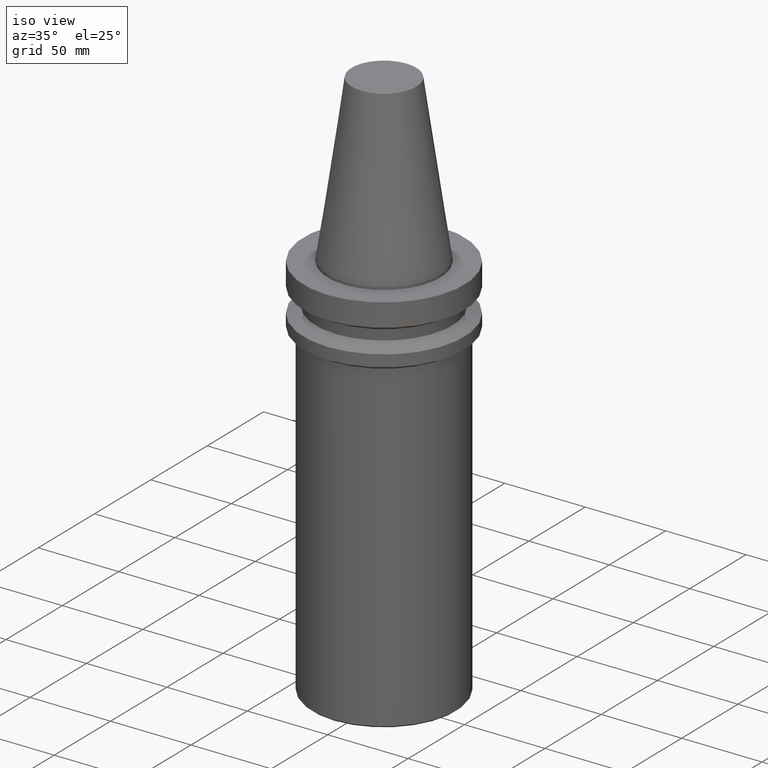
[diagram: clean part render]
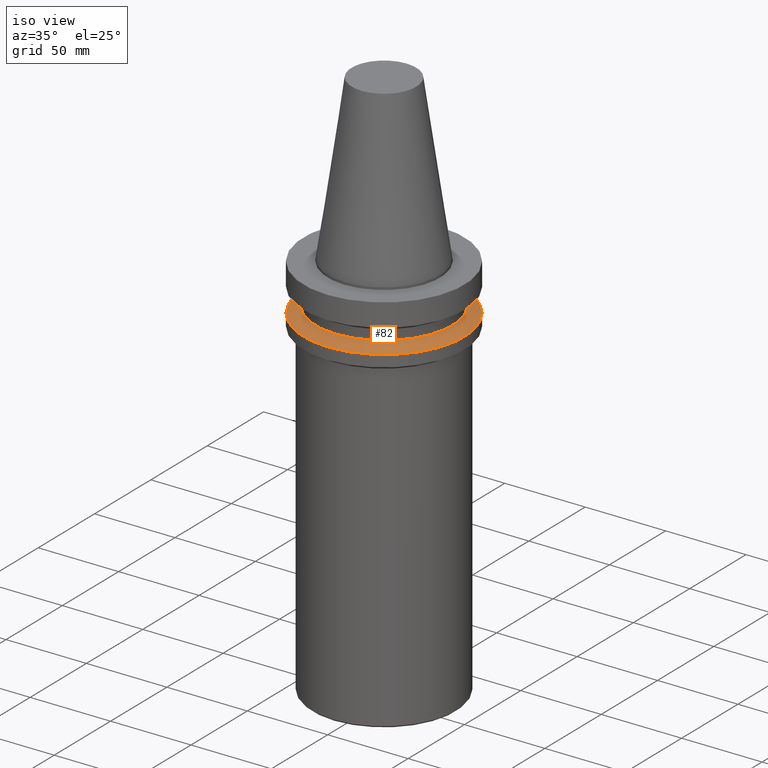
[diagram: same view with one face highlighted and labeled with its STEP entity id]
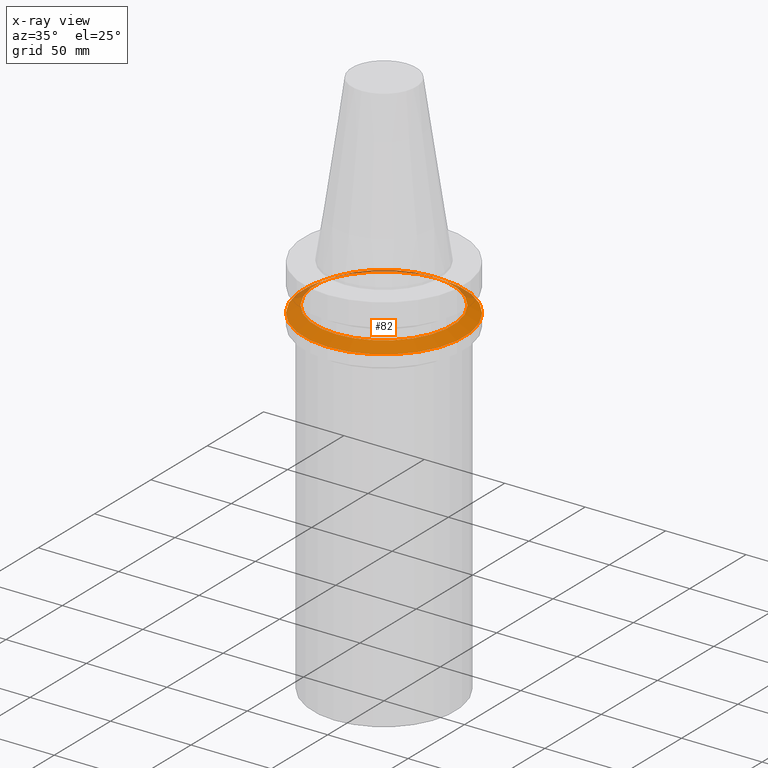
[diagram: x-ray of the same camera — body ghosted, the highlighted face saturated]
A machine part, iso view. The second image highlights one B-rep face of the part: STEP entity #82.
The next image is the same camera in x-ray: the body ghosted, the highlighted face saturated — about 9% of this face is hidden behind the body in this view.
In plain terms, the highlighted conical surface has half-angle 60 deg.
Its self-contained STEP definition (entity closure, byte-faithful):
#82=ADVANCED_FACE('',(#109,#110),#111,.T.);
#109=FACE_BOUND('',#149,.T.);
#110=FACE_BOUND('',#150,.T.);
#111=CONICAL_SURFACE('',#151,46.2500000000005,1.0471975511966);
#149=EDGE_LOOP('',(#203));
#150=EDGE_LOOP('',(#204));
#151=AXIS2_PLACEMENT_3D('',#205,#206,#207);
#203=ORIENTED_EDGE('',*,*,#245,.F.);
#204=ORIENTED_EDGE('',*,*,#244,.T.);
#205=CARTESIAN_POINT('',(1.74726093185057E-015,3.49452186370114E-015,-28.5349364905388));
#206=DIRECTION('',(6.12323399573677E-017,1.22464679914735E-016,-1.0));
#207=DIRECTION('',(-1.23259516440783E-032,1.0,1.22464679914735E-016));
#244=EDGE_CURVE('',#263,#263,#264,.T.);
#245=EDGE_CURVE('',#265,#265,#266,.T.);
#263=VERTEX_POINT('',#289);
#264=CIRCLE('',#290,50.0000000000005);
#265=VERTEX_POINT('',#291);
#266=CIRCLE('',#292,42.5000000000004);
#289=CARTESIAN_POINT('',(1.87983283669118E-015,50.0000000000005,-30.6999999999999));
#290=AXIS2_PLACEMENT_3D('',#321,#322,#323);
#291=CARTESIAN_POINT('',(1.61468902700995E-015,42.5000000000004,-26.3698729810777));
#292=AXIS2_PLACEMENT_3D('',#324,#325,#326);
#321=CARTESIAN_POINT('',(1.87983283669118E-015,3.75966567338236E-015,-30.6999999999999));
#322=DIRECTION('',(-6.12323399573677E-017,-1.22464679914735E-016,1.0));
#323=DIRECTION('',(-1.23259516440783E-032,1.0,1.22464679914735E-016));
#324=CARTESIAN_POINT('',(1.61468902700995E-015,3.22937805401991E-015,-26.3698729810777));
#325=DIRECTION('',(-6.12323399573677E-017,-1.22464679914735E-016,1.0));
#326=DIRECTION('',(-1.23259516440783E-032,1.0,1.22464679914735E-016));